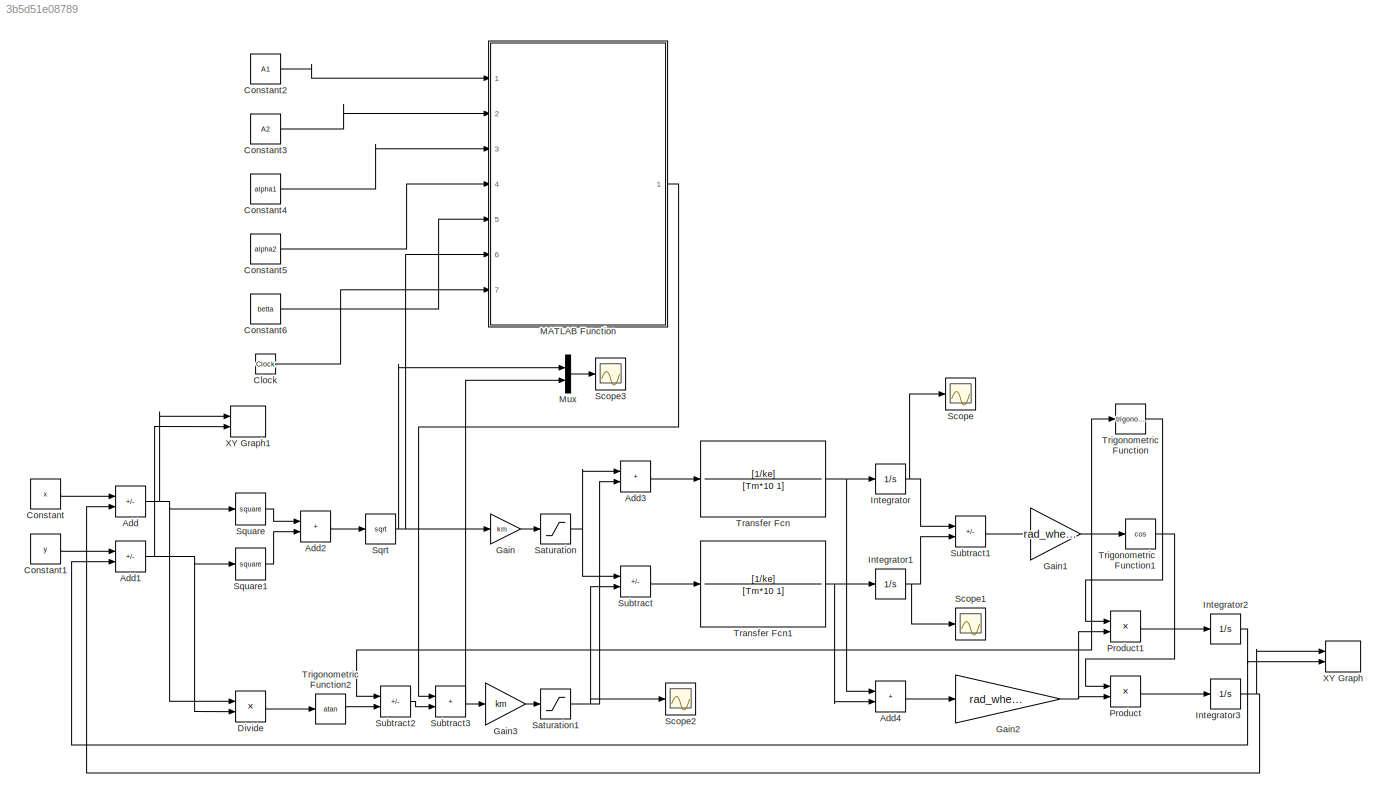
MODEL slx_3b5d51e08789
KIND model
CONFIG AbsTol = auto
CONFIG EnableMultiTasking = off
CONFIG FixedStep = 0.001
CONFIG MaxStep = auto
CONFIG MinStep = auto
CONFIG RelTol = 1e-3
CONFIG SampleTimeConstraint = Unconstrained
CONFIG SolverName = FixedStepAuto
CONFIG StartTime = 0.0
CONFIG StopTime = ts
BLOCK [Sum] Add
  IconShape = rectangular
  Inputs = +-
  Ports = [2, 1]
BLOCK [Sum] Add1
  IconShape = rectangular
  Inputs = +-
  Ports = [2, 1]
BLOCK [Sum] Add2
  IconShape = rectangular
  Ports = [2, 1]
BLOCK [Sum] Add3
  IconShape = rectangular
  Ports = [2, 1]
BLOCK [Sum] Add4
  IconShape = rectangular
  Ports = [2, 1]
BLOCK [Clock] Clock
BLOCK [Constant] Constant
  Value = x
BLOCK [Constant] Constant1
  Value = y
BLOCK [Constant] Constant2
  Value = A1
BLOCK [Constant] Constant3
  Value = A2
BLOCK [Constant] Constant4
  Value = alpha1
BLOCK [Constant] Constant5
  Value = alpha2
BLOCK [Constant] Constant6
  Value = betta
BLOCK [Product] Divide
  Inputs = */
  Ports = [2, 1]
BLOCK [Gain] Gain
  Gain = km
BLOCK [Gain] Gain1
  Gain = rad_wheel/base
BLOCK [Gain] Gain2
  Gain = rad_wheel/2
BLOCK [Gain] Gain3
  Gain = km
BLOCK [Integrator] Integrator
  Ports = [1, 1]
BLOCK [Integrator] Integrator1
  Ports = [1, 1]
BLOCK [Integrator] Integrator2
  Ports = [1, 1]
BLOCK [Integrator] Integrator3
  Ports = [1, 1]
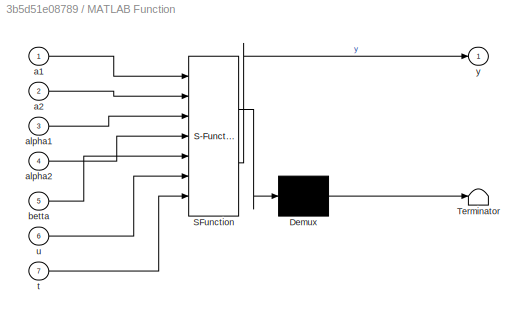
BLOCK [SubSystem] MATLAB Function
  ErrorFcn = Stateflow.Translate.translate
  PermitHierarchicalResolution = ExplicitOnly
  Ports = [7, 1]
  RequestExecContextInheritance = off
  SFBlockType = MATLAB Function
  TreatAsAtomicUnit = on
BLOCK [Demux] MATLAB Function/ Demux 
  Outputs = 1
  Ports = [1, 1]
BLOCK [S-Function] MATLAB Function/ SFunction 
  EnableBusSupport = on
  FunctionName = sf_sfun
  PortCounts = [7 2]
  Ports = [7, 2]
  SFcnIsStateOwnerBlock = off
  SFunctionDeploymentMode = off
  Tag = Stateflow S-Function 2
BLOCK [Terminator] MATLAB Function/ Terminator 
BLOCK [Inport] MATLAB Function/a1
BLOCK [Inport] MATLAB Function/a2
  Port = 2
BLOCK [Inport] MATLAB Function/alpha1
  Port = 3
BLOCK [Inport] MATLAB Function/alpha2
  Port = 4
BLOCK [Inport] MATLAB Function/betta
  Port = 5
BLOCK [Inport] MATLAB Function/t
  Port = 7
BLOCK [Inport] MATLAB Function/u
  Port = 6
BLOCK [Outport] MATLAB Function/y
BLOCK [Mux] Mux
  DisplayOption = bar
  Inputs = 2
  Ports = [2, 1]
BLOCK [Product] Product
  Ports = [2, 1]
BLOCK [Product] Product1
  Ports = [2, 1]
BLOCK [Saturate] Saturation
BLOCK [Saturate] Saturation1
BLOCK [Scope] Scope
  Floating = off
  NumInputPorts = 1
  Ports = [1]
  ScopeSpecificationString = Simulink.scopes.TimeScopeBlockCfg('CurrentConfiguration', extmgr.ConfigurationSet(extmgr.Configuration('Core','General UI',true),extmgr.Configuration('Core','Source UI',true),extmgr.Configuration('Sources','WiredSimulink',true),extmgr.Configuration('Visuals','Time Domain',true,'SerializedDisplays',{struct('MinYLimReal','4.39684','MaxYLimReal','8.47809','YLabelReal','','MinYLimMag','4.39684','MaxYL...<+1347ch>
BLOCK [Scope] Scope1
  Floating = off
  NumInputPorts = 1
  Ports = [1]
  ScopeSpecificationString = Simulink.scopes.TimeScopeBlockCfg('CurrentConfiguration', extmgr.ConfigurationSet(extmgr.Configuration('Core','General UI',true),extmgr.Configuration('Core','Source UI',true),extmgr.Configuration('Sources','WiredSimulink',true,'DataLoggingVariableName','ScopeData1'),extmgr.Configuration('Visuals','Time Domain',true,'SerializedDisplays',{struct('MinYLimReal','-1.00000','MaxYLimReal','1.00000','YLab...<+1370ch>
BLOCK [Scope] Scope2
  Floating = off
  NumInputPorts = 1
  Ports = [1]
  ScopeSpecificationString = Simulink.scopes.TimeScopeBlockCfg('CurrentConfiguration', extmgr.ConfigurationSet(extmgr.Configuration('Core','General UI',true),extmgr.Configuration('Core','Source UI',true),extmgr.Configuration('Sources','WiredSimulink',true,'DataLoggingVariableName','ScopeData2'),extmgr.Configuration('Visuals','Time Domain',true,'SerializedDisplays',{struct('MinYLimReal','0.4','MaxYLimReal','0.6','YLabelReal','...<+1388ch>
BLOCK [Scope] Scope3
  Floating = off
  NumInputPorts = 1
  Ports = [1]
  ScopeSpecificationString = Simulink.scopes.TimeScopeBlockCfg('CurrentConfiguration', extmgr.ConfigurationSet(extmgr.Configuration('Core','General UI',true),extmgr.Configuration('Core','Source UI',true),extmgr.Configuration('Sources','WiredSimulink',true,'DataLoggingVariableName','ScopeData1'),extmgr.Configuration('Visuals','Time Domain',true,'SerializedDisplays',{struct('MinYLimReal','1.65502','MaxYLimReal','2.95881','YLabe...<+1398ch>
BLOCK [Sqrt] Sqrt
BLOCK [Math] Square
  Operator = square
  Ports = [1, 1]
BLOCK [Math] Square1
  Operator = square
  Ports = [1, 1]
BLOCK [Sum] Subtract
  IconShape = rectangular
  Inputs = +-
  Ports = [2, 1]
BLOCK [Sum] Subtract1
  IconShape = rectangular
  Inputs = +-
  Ports = [2, 1]
BLOCK [Sum] Subtract2
  IconShape = rectangular
  Inputs = -+
  Ports = [2, 1]
BLOCK [Sum] Subtract3
  IconShape = rectangular
  Ports = [2, 1]
BLOCK [TransferFcn] Transfer Fcn
  Denominator = [Tm*10 1]
  Numerator = [1/ke]
BLOCK [TransferFcn] Transfer Fcn1
  Denominator = [Tm*10 1]
  Numerator = [1/ke]
BLOCK [Trigonometry] Trigonometric Function
  Ports = [1, 1]
BLOCK [Trigonometry] Trigonometric Function1
  Operator = cos
  Ports = [1, 1]
BLOCK [Trigonometry] Trigonometric Function2
  Operator = atan
  Ports = [1, 1]
BLOCK [Record] XY Graph
  CompatibilityTag = XY
  FileSettingsInternal = {"entries":[{"content":{"excelSettings":{"content":{},"type":"Streamout.ExcelSettings"}},"type":"Streamout.FileSettingStorage","uuid":"340998fa-6101-45c7-8a1a-64bb9a12050a"}],"packageUris":["http://schema.mathworks.com/mf0/streamout_blocks/R2020a"],"version":"1.0"}
  Layout = [1 1]
  Ports = [2]
  SignalsInternal = {"entries":[{"content":{"signals":[{"content":{"blockPath":["Model/XY Graph"],"channel":[],"dimensions":[1],"domain":"Model/XY Graph","lineColor":"#a2142f","plots":[1],"port":1,"sid":[],"signalID":17,"signalName":"Integrator3"},"type":"RecordBlkView.Signal","uuid":"e82d8168-0cce-417e-a086-51c5a9be084d"},{"content":{"blockPath":["Model/XY Graph"],"channel":[],"dimensions":[1],"domain":"Model/XY Gra...<+351ch>
  VisualizationBindings = {"xyplotplugin":{"info":[{"series":[{"bindingParametersList":[{"parameter":"X-Axis","signalID":17,"signalName":"Integrator3"},{"parameter":"Y-Axis","signalID":20,"signalName":"Integrator2"}],"seriesID":4262}],"subplotID":1}]}}
BLOCK [Record] XY Graph1
  CompatibilityTag = XY
  FileSettingsInternal = {"entries":[{"content":{"excelSettings":{"content":{},"type":"Streamout.ExcelSettings"}},"type":"Streamout.FileSettingStorage","uuid":"54ef7885-9eb1-459b-a4b8-b0d979272bf7"}],"packageUris":["http://schema.mathworks.com/mf0/streamout_blocks/R2020a"],"version":"1.0"}
  Layout = [1 1]
  Ports = [2]
  SignalsInternal = {"entries":[{"content":{"signals":[{"content":{"blockPath":["Model/XY Graph1"],"channel":[],"dimensions":[1],"domain":"Model/XY Graph1","lineColor":"#a2142f","plots":[1],"port":1,"sid":[],"signalID":9,"signalName":"Add"},"type":"RecordBlkView.Signal","uuid":"ae337f28-2e23-464e-917f-e625c070526b"},{"content":{"blockPath":["Model/XY Graph1"],"channel":[],"dimensions":[1],"domain":"Model/XY Graph1","...<+339ch>
  VisualizationBindings = {"xyplotplugin":{"info":[{"series":[{"bindingParametersList":[{"parameter":"X-Axis","signalID":9,"signalName":"Add"},{"parameter":"Y-Axis","signalID":12,"signalName":"Add1"}],"seriesID":27239}],"subplotID":1}]}}
NET Add1:1 -> Divide:2, Square1:1, XY Graph1:2
LINE Add2:1 -> Sqrt:1
LINE Add3:1 -> Transfer Fcn:1
LINE Add4:1 -> Gain2:1
NET Add:1 -> Divide:1, Square:1, XY Graph1:1
LINE Clock:1 -> MATLAB Function:7
LINE Constant1:1 -> Add1:1
LINE Constant2:1 -> MATLAB Function:1
LINE Constant3:1 -> MATLAB Function:2
LINE Constant4:1 -> MATLAB Function:3
LINE Constant5:1 -> MATLAB Function:4
LINE Constant6:1 -> MATLAB Function:5
LINE Constant:1 -> Add:1
LINE Divide:1 -> Trigonometric Function2:1
NET Gain1:1 -> Subtract2:1, Trigonometric Function1:1, Trigonometric Function:1
NET Gain2:1 -> Product1:2, Product:2
LINE Gain3:1 -> Saturation1:1
LINE Gain:1 -> Saturation:1
NET Integrator1:1 -> Scope1:1, Subtract1:2
NET Integrator2:1 -> Add1:2, XY Graph:2
NET Integrator3:1 -> Add:2, XY Graph:1
NET Integrator:1 -> Scope:1, Subtract1:1
LINE MATLAB Function:1 -> Subtract3:1
LINE Mux:1 -> Scope3:1
LINE Product1:1 -> Integrator2:1
LINE Product:1 -> Integrator3:1
NET Saturation1:1 -> Add3:2, Scope2:1, Subtract:2
NET Saturation:1 -> Add3:1, Subtract:1
NET Sqrt:1 -> Gain:1, MATLAB Function:6, Mux:1
LINE Square1:1 -> Add2:2
LINE Square:1 -> Add2:1
LINE Subtract1:1 -> Gain1:1
LINE Subtract2:1 -> Subtract3:2
NET Subtract3:1 -> Gain3:1, Mux:2
LINE Subtract:1 -> Transfer Fcn1:1
NET Transfer Fcn1:1 -> Add4:2, Integrator1:1
NET Transfer Fcn:1 -> Add4:1, Integrator:1
LINE Trigonometric Function1:1 -> Product:1
LINE Trigonometric Function2:1 -> Subtract2:2
LINE Trigonometric Function:1 -> Product1:1
note: NET lines group one-source signal fan-out (src -> all destinations, sorted); 1:1 wires keep LINE
CHART MATLAB Function states=1 transitions=1
  STATE_LABEL 'eML_blk_kernel()'
  STATE_LABEL 'SCRIPT:\nfunction y = fcn(a1, a2, alpha1, alpha2, betta, u,t)\n    block_1 = a1*exp(-alpha1*u*abs(t));\n    block_2 = a2*exp(-alpha2*u*abs(t))*cos(u*betta*t);\ny= block_1 + block_2;'
CHART  states=0 transitions=0
